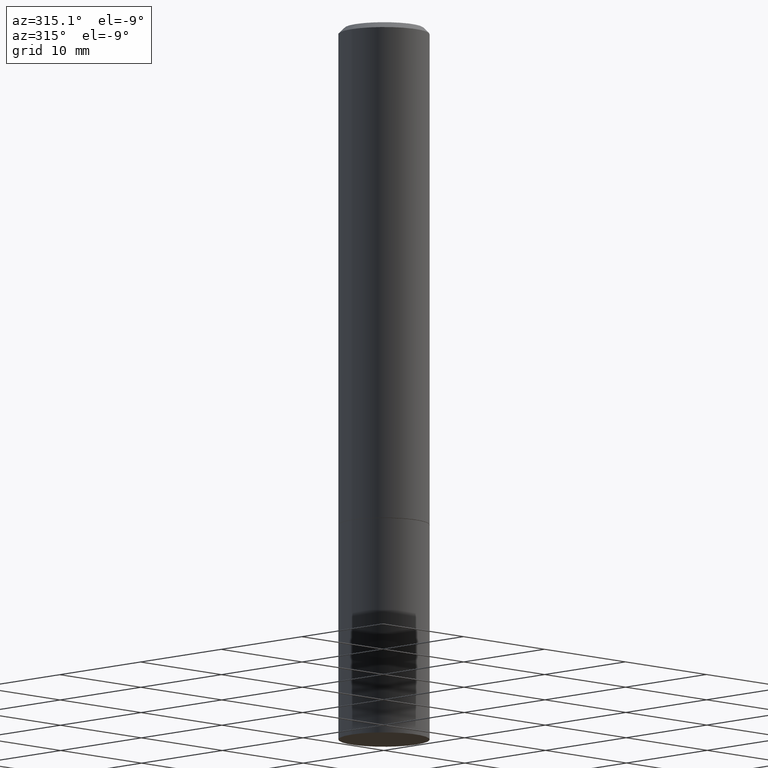
[diagram: clean part render]
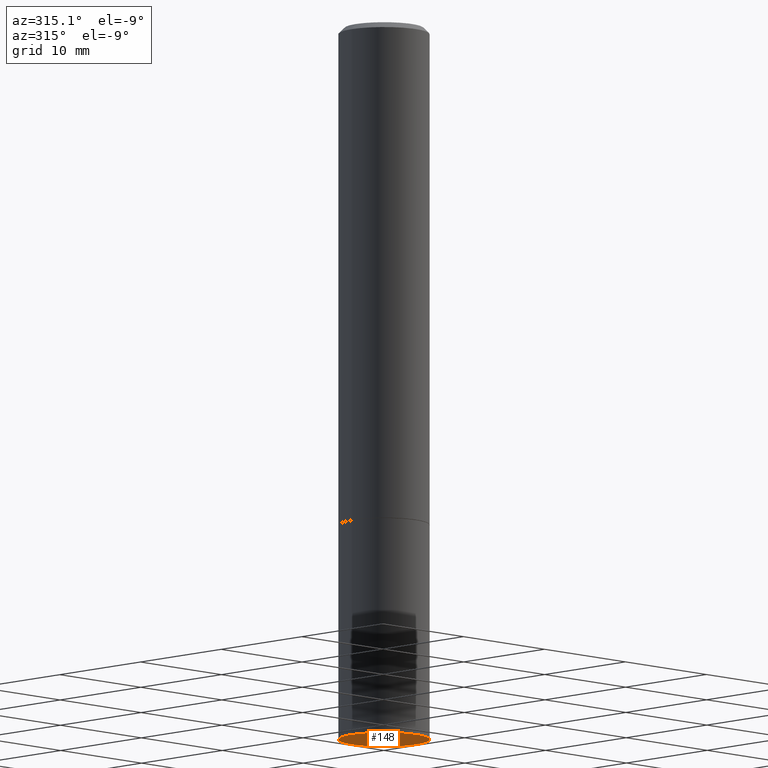
[diagram: same view with one face highlighted and labeled with its STEP entity id]
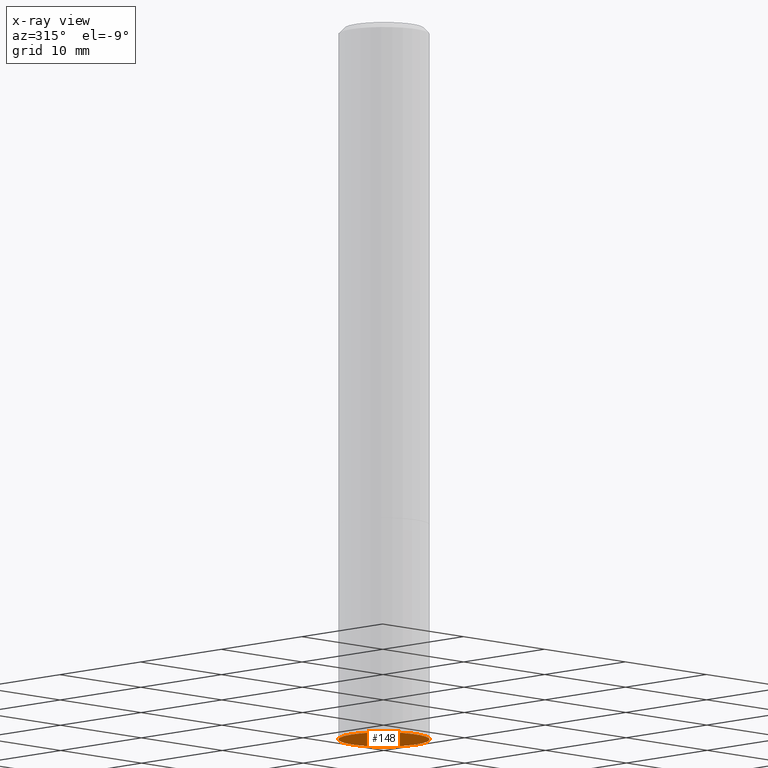
[diagram: x-ray of the same camera — body ghosted, the highlighted face saturated]
A machine part, auxiliary view. The second image highlights one B-rep face of the part: STEP entity #148.
The next image is the same camera in x-ray: the body ghosted, the highlighted face saturated — about 0% of this face is hidden behind the body in this view.
In plain terms, the highlighted planar face has unit normal (0, -0, -1).
Its self-contained STEP definition (entity closure, byte-faithful):
#3 = EDGE_LOOP ( 'NONE', ( #171, #60 ) ) ;
#21 = CARTESIAN_POINT ( 'NONE',  ( 6.065496279980994755E-29, -8.659921164732655335E-15, -2.480300000000000171 ) ) ;
#40 = VERTEX_POINT ( 'NONE', #107 ) ;
#60 = ORIENTED_EDGE ( 'NONE', *, *, #309, .F. ) ;
#100 = FACE_OUTER_BOUND ( 'NONE', #3, .T. ) ;
#101 = CIRCLE ( 'NONE', #327, 0.1575000000000000011 ) ;
#107 = CARTESIAN_POINT ( 'NONE',  ( -0.1575000000000000011, -6.235002335183160998E-15, -2.480300000000000171 ) ) ;
#131 = DIRECTION ( 'NONE',  ( -1.000000000000000000, 6.982962677686265922E-15, -4.876176775795935793E-29 ) ) ;
#135 = VERTEX_POINT ( 'NONE', #243 ) ;
#148 = ADVANCED_FACE ( 'NONE', ( #100 ), #348, .T. ) ;
#160 = AXIS2_PLACEMENT_3D ( 'NONE', #257, #340, #131 ) ;
#168 = DIRECTION ( 'NONE',  ( 1.000000000000000000, -6.982962677686261977E-15, 0.000000000000000000 ) ) ;
#171 = ORIENTED_EDGE ( 'NONE', *, *, #205, .F. ) ;
#191 = DIRECTION ( 'NONE',  ( -2.445468806185136597E-29, 3.491481338843145583E-15, 1.000000000000000000 ) ) ;
#205 = EDGE_CURVE ( 'NONE', #135, #40, #101, .T. ) ;
#210 = AXIS2_PLACEMENT_3D ( 'NONE', #287, #256, #216 ) ;
#216 = DIRECTION ( 'NONE',  ( 1.000000000000000000, -6.982962677686261977E-15, 0.000000000000000000 ) ) ;
#226 = CIRCLE ( 'NONE', #210, 0.1575000000000000011 ) ;
#243 = CARTESIAN_POINT ( 'NONE',  ( 0.1575000000000000011, -9.759737786468242027E-15, -2.480300000000000171 ) ) ;
#256 = DIRECTION ( 'NONE',  ( -2.445468806185136597E-29, 3.491481338843145583E-15, 1.000000000000000000 ) ) ;
#257 = CARTESIAN_POINT ( 'NONE',  ( 1.099816621735647434E-15, 0.1574999999999913136, -2.480300000000001059 ) ) ;
#287 = CARTESIAN_POINT ( 'NONE',  ( 6.065496279980994755E-29, -8.659921164732655335E-15, -2.480300000000000171 ) ) ;
#309 = EDGE_CURVE ( 'NONE', #40, #135, #226, .T. ) ;
#327 = AXIS2_PLACEMENT_3D ( 'NONE', #21, #191, #168 ) ;
#340 = DIRECTION ( 'NONE',  ( 2.438088387897960049E-29, -3.491481338843145188E-15, -1.000000000000000000 ) ) ;
#348 = PLANE ( 'NONE',  #160 ) ;